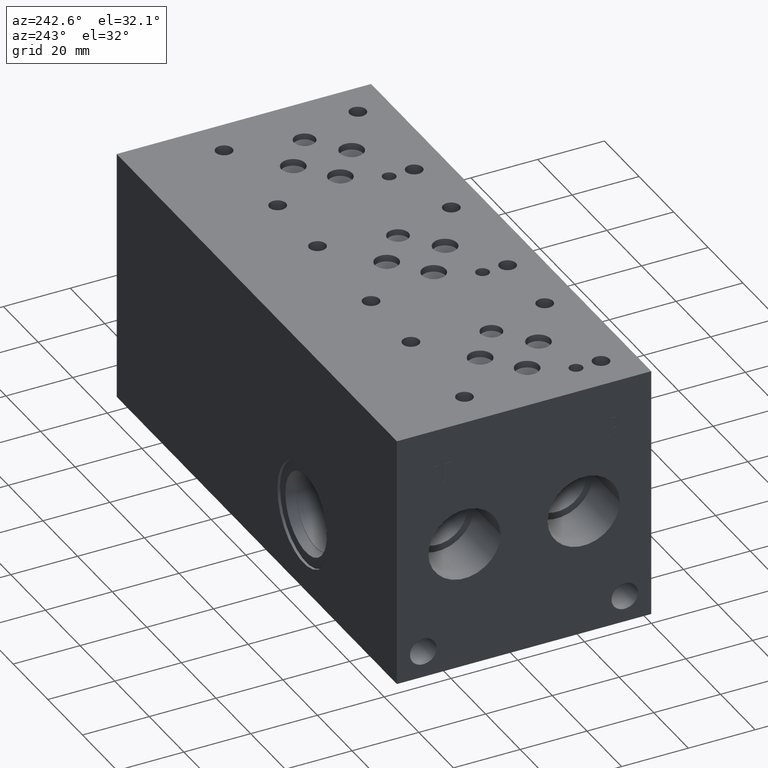
[diagram: clean part render]
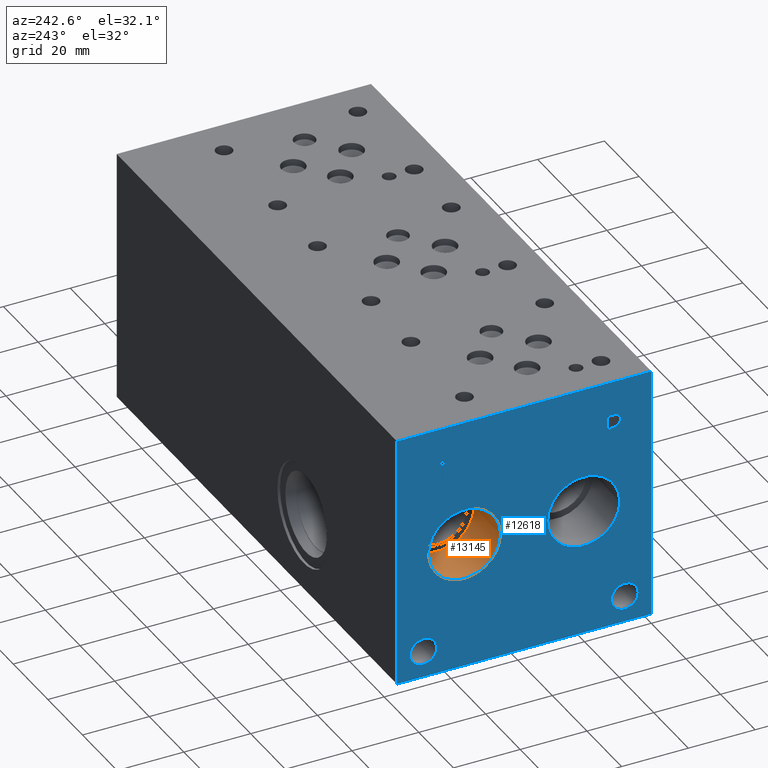
[diagram: same view with the hole feature highlighted: cylindrical wall and planar end face, labeled with their STEP entity ids]
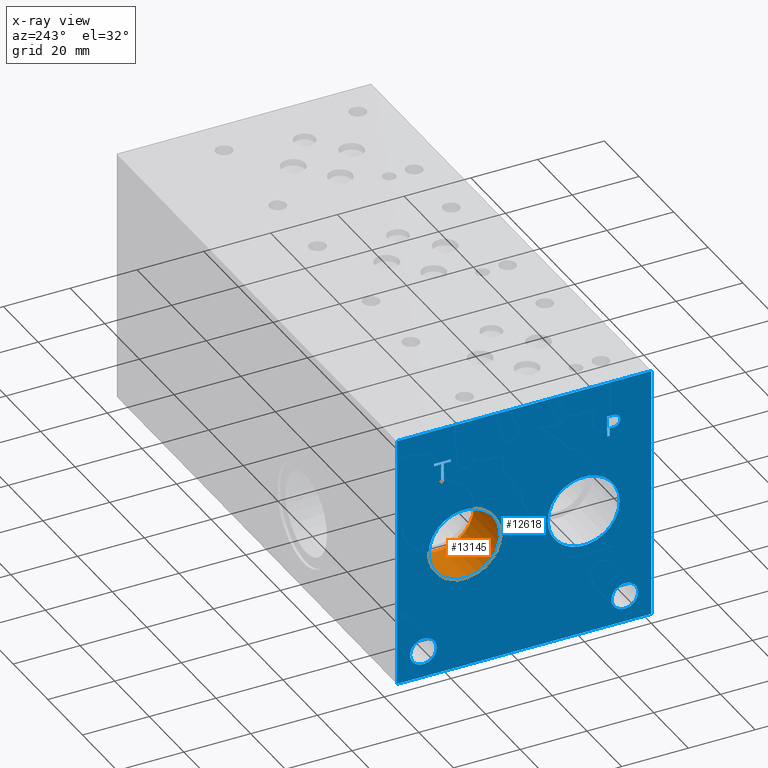
[diagram: x-ray of the same camera — body ghosted, the hole faces saturated]
A machine part, auxiliary view. The highlighted faces form one hole feature of diameter 21.59 mm: the cylindrical wall (entity #13145, orange) and its adjacent planar end face (entity #12618, blue) — they share a circular edge in the B-rep.
The next image is the same camera in x-ray (body ghosted, the hole faces saturated) — the bore reads through the body.
Wall:
#40=CYLINDRICAL_SURFACE('',#13774,10.795);
#152=CIRCLE('',#13306,10.795);
#153=CIRCLE('',#13307,10.795);
#254=CIRCLE('',#13771,10.795);
#255=CIRCLE('',#13772,10.795);
#1495=FACE_OUTER_BOUND('',#2251,.T.);
#2251=EDGE_LOOP('',(#11323,#11324,#11325,#11326,#11327,#11328));
#3504=LINE('',#22356,#4689);
#4689=VECTOR('',#16169,10.795);
#5231=VERTEX_POINT('',#17309);
#5232=VERTEX_POINT('',#17310);
#6197=VERTEX_POINT('',#22349);
#6198=VERTEX_POINT('',#22350);
#6543=EDGE_CURVE('',#5231,#5232,#152,.T.);
#6544=EDGE_CURVE('',#5232,#5231,#153,.T.);
#7972=EDGE_CURVE('',#6197,#6198,#254,.T.);
#7973=EDGE_CURVE('',#6198,#6197,#255,.T.);
#7975=EDGE_CURVE('',#5232,#6198,#3504,.T.);
#11323=ORIENTED_EDGE('',*,*,#6543,.F.);
#11324=ORIENTED_EDGE('',*,*,#6544,.F.);
#11325=ORIENTED_EDGE('',*,*,#7975,.T.);
#11326=ORIENTED_EDGE('',*,*,#7972,.F.);
#11327=ORIENTED_EDGE('',*,*,#7973,.F.);
#11328=ORIENTED_EDGE('',*,*,#7975,.F.);
#13145=ADVANCED_FACE('',(#1495),#40,.F.);
#13306=AXIS2_PLACEMENT_3D('',#17311,#14230,#14231);
#13307=AXIS2_PLACEMENT_3D('',#17312,#14232,#14233);
#13771=AXIS2_PLACEMENT_3D('',#22351,#16161,#16162);
#13772=AXIS2_PLACEMENT_3D('',#22352,#16163,#16164);
#13774=AXIS2_PLACEMENT_3D('',#22355,#16167,#16168);
#14230=DIRECTION('center_axis',(1.,0.,0.));
#14231=DIRECTION('ref_axis',(0.,1.,0.));
#14232=DIRECTION('center_axis',(1.,0.,0.));
#14233=DIRECTION('ref_axis',(0.,1.,0.));
#16161=DIRECTION('center_axis',(-1.,0.,0.));
#16162=DIRECTION('ref_axis',(0.,1.,0.));
#16163=DIRECTION('center_axis',(-1.,0.,0.));
#16164=DIRECTION('ref_axis',(0.,1.,0.));
#16167=DIRECTION('center_axis',(-1.,0.,0.));
#16168=DIRECTION('ref_axis',(0.,1.,0.));
#16169=DIRECTION('',(1.,0.,0.));
#17309=CARTESIAN_POINT('',(0.,66.7512,38.1));
#17310=CARTESIAN_POINT('',(0.,45.1612,38.1));
#17311=CARTESIAN_POINT('Origin',(0.,55.9562,38.1));
#17312=CARTESIAN_POINT('Origin',(0.,55.9562,38.1));
#22349=CARTESIAN_POINT('',(15.367,66.7512,38.1));
#22350=CARTESIAN_POINT('',(15.367,45.1612,38.1));
#22351=CARTESIAN_POINT('Origin',(15.367,55.9562,38.1));
#22352=CARTESIAN_POINT('Origin',(15.367,55.9562,38.1));
#22355=CARTESIAN_POINT('Origin',(7.6835,55.9562,38.1));
#22356=CARTESIAN_POINT('',(7.6835,45.1612,38.1));
End face:
#152=CIRCLE('',#13306,10.795);
#153=CIRCLE('',#13307,10.795);
#154=CIRCLE('',#13308,10.795);
#155=CIRCLE('',#13309,10.795);
#156=CIRCLE('',#13310,4.0005);
#157=CIRCLE('',#13311,4.0005);
#158=CIRCLE('',#13312,4.0005);
#159=CIRCLE('',#13313,4.0005);
#439=FACE_BOUND('',#1658,.T.);
#440=FACE_BOUND('',#1659,.T.);
#441=FACE_BOUND('',#1660,.T.);
#442=FACE_BOUND('',#1661,.T.);
#443=FACE_BOUND('',#1662,.T.);
#444=FACE_BOUND('',#1663,.T.);
#580=PLANE('',#13305);
#968=FACE_OUTER_BOUND('',#1657,.T.);
#1657=EDGE_LOOP('',(#8466,#8467,#8468,#8469));
#1658=EDGE_LOOP('',(#8470,#8471));
#1659=EDGE_LOOP('',(#8472,#8473));
#1660=EDGE_LOOP('',(#8474,#8475));
#1661=EDGE_LOOP('',(#8476,#8477));
#1662=EDGE_LOOP('',(#8478,#8479,#8480,#8481,#8482,#8483,#8484,#8485));
#1663=EDGE_LOOP('',(#8486,#8487,#8488,#8489,#8490,#8491,#8492,#8493,#8494));
#2483=LINE('',#17236,#3668);
#2486=LINE('',#17242,#3671);
#2489=LINE('',#17248,#3674);
#2492=LINE('',#17254,#3677);
#2495=LINE('',#17260,#3680);
#2499=LINE('',#17303,#3684);
#2500=LINE('',#17305,#3685);
#2501=LINE('',#17307,#3686);
#2502=LINE('',#17308,#3687);
#2503=LINE('',#17327,#3688);
#2504=LINE('',#17329,#3689);
#2505=LINE('',#17331,#3690);
#2506=LINE('',#17333,#3691);
#2507=LINE('',#17335,#3692);
#2508=LINE('',#17337,#3693);
#2509=LINE('',#17339,#3694);
#2510=LINE('',#17340,#3695);
#3668=VECTOR('',#14198,10.);
#3671=VECTOR('',#14203,10.);
#3674=VECTOR('',#14208,10.);
#3677=VECTOR('',#14213,10.);
#3680=VECTOR('',#14218,10.);
#3684=VECTOR('',#14226,10.);
#3685=VECTOR('',#14227,10.);
#3686=VECTOR('',#14228,10.);
#3687=VECTOR('',#14229,10.);
#3688=VECTOR('',#14246,10.);
#3689=VECTOR('',#14247,10.);
#3690=VECTOR('',#14248,10.);
#3691=VECTOR('',#14249,10.);
#3692=VECTOR('',#14250,10.);
#3693=VECTOR('',#14251,10.);
#3694=VECTOR('',#14252,10.);
#3695=VECTOR('',#14253,10.);
#4801=B_SPLINE_CURVE_WITH_KNOTS('',2,(#17203,#17204,#17205,#17206),
 .UNSPECIFIED.,.F.,.F.,(3,1,3),(0.,1.,2.),.UNSPECIFIED.);
#4803=B_SPLINE_CURVE_WITH_KNOTS('',2,(#17224,#17225,#17226,#17227),
 .UNSPECIFIED.,.F.,.F.,(3,1,3),(0.,1.,2.),.UNSPECIFIED.);
#4805=B_SPLINE_CURVE_WITH_KNOTS('',2,(#17273,#17274,#17275,#17276),
 .UNSPECIFIED.,.F.,.F.,(3,1,3),(0.,1.,2.),.UNSPECIFIED.);
#4807=B_SPLINE_CURVE_WITH_KNOTS('',2,(#17291,#17292,#17293,#17294),
 .UNSPECIFIED.,.F.,.F.,(3,1,3),(0.,1.,2.),.UNSPECIFIED.);
#5209=VERTEX_POINT('',#17201);
#5210=VERTEX_POINT('',#17202);
#5213=VERTEX_POINT('',#17223);
#5215=VERTEX_POINT('',#17235);
#5217=VERTEX_POINT('',#17241);
#5219=VERTEX_POINT('',#17247);
#5221=VERTEX_POINT('',#17253);
#5223=VERTEX_POINT('',#17259);
#5225=VERTEX_POINT('',#17272);
#5227=VERTEX_POINT('',#17301);
#5228=VERTEX_POINT('',#17302);
#5229=VERTEX_POINT('',#17304);
#5230=VERTEX_POINT('',#17306);
#5231=VERTEX_POINT('',#17309);
#5232=VERTEX_POINT('',#17310);
#5233=VERTEX_POINT('',#17313);
#5234=VERTEX_POINT('',#17314);
#5235=VERTEX_POINT('',#17317);
#5236=VERTEX_POINT('',#17318);
#5237=VERTEX_POINT('',#17321);
#5238=VERTEX_POINT('',#17322);
#5239=VERTEX_POINT('',#17325);
#5240=VERTEX_POINT('',#17326);
#5241=VERTEX_POINT('',#17328);
#5242=VERTEX_POINT('',#17330);
#5243=VERTEX_POINT('',#17332);
#5244=VERTEX_POINT('',#17334);
#5245=VERTEX_POINT('',#17336);
#5246=VERTEX_POINT('',#17338);
#6512=EDGE_CURVE('',#5209,#5210,#4801,.T.);
#6516=EDGE_CURVE('',#5213,#5209,#4803,.T.);
#6519=EDGE_CURVE('',#5215,#5213,#2483,.T.);
#6522=EDGE_CURVE('',#5217,#5215,#2486,.T.);
#6525=EDGE_CURVE('',#5219,#5217,#2489,.T.);
#6528=EDGE_CURVE('',#5221,#5219,#2492,.T.);
#6531=EDGE_CURVE('',#5223,#5221,#2495,.T.);
#6534=EDGE_CURVE('',#5225,#5223,#4805,.T.);
#6537=EDGE_CURVE('',#5210,#5225,#4807,.T.);
#6539=EDGE_CURVE('',#5227,#5228,#2499,.T.);
#6540=EDGE_CURVE('',#5228,#5229,#2500,.T.);
#6541=EDGE_CURVE('',#5230,#5229,#2501,.T.);
#6542=EDGE_CURVE('',#5227,#5230,#2502,.T.);
#6543=EDGE_CURVE('',#5231,#5232,#152,.T.);
#6544=EDGE_CURVE('',#5232,#5231,#153,.T.);
#6545=EDGE_CURVE('',#5233,#5234,#154,.T.);
#6546=EDGE_CURVE('',#5234,#5233,#155,.T.);
#6547=EDGE_CURVE('',#5235,#5236,#156,.T.);
#6548=EDGE_CURVE('',#5236,#5235,#157,.T.);
#6549=EDGE_CURVE('',#5237,#5238,#158,.T.);
#6550=EDGE_CURVE('',#5238,#5237,#159,.T.);
#6551=EDGE_CURVE('',#5239,#5240,#2503,.T.);
#6552=EDGE_CURVE('',#5240,#5241,#2504,.T.);
#6553=EDGE_CURVE('',#5241,#5242,#2505,.T.);
#6554=EDGE_CURVE('',#5242,#5243,#2506,.T.);
#6555=EDGE_CURVE('',#5243,#5244,#2507,.T.);
#6556=EDGE_CURVE('',#5244,#5245,#2508,.T.);
#6557=EDGE_CURVE('',#5245,#5246,#2509,.T.);
#6558=EDGE_CURVE('',#5246,#5239,#2510,.T.);
#8466=ORIENTED_EDGE('',*,*,#6539,.T.);
#8467=ORIENTED_EDGE('',*,*,#6540,.T.);
#8468=ORIENTED_EDGE('',*,*,#6541,.F.);
#8469=ORIENTED_EDGE('',*,*,#6542,.F.);
#8470=ORIENTED_EDGE('',*,*,#6543,.T.);
#8471=ORIENTED_EDGE('',*,*,#6544,.T.);
#8472=ORIENTED_EDGE('',*,*,#6545,.T.);
#8473=ORIENTED_EDGE('',*,*,#6546,.T.);
#8474=ORIENTED_EDGE('',*,*,#6547,.T.);
#8475=ORIENTED_EDGE('',*,*,#6548,.T.);
#8476=ORIENTED_EDGE('',*,*,#6549,.T.);
#8477=ORIENTED_EDGE('',*,*,#6550,.T.);
#8478=ORIENTED_EDGE('',*,*,#6551,.T.);
#8479=ORIENTED_EDGE('',*,*,#6552,.T.);
#8480=ORIENTED_EDGE('',*,*,#6553,.T.);
#8481=ORIENTED_EDGE('',*,*,#6554,.T.);
#8482=ORIENTED_EDGE('',*,*,#6555,.T.);
#8483=ORIENTED_EDGE('',*,*,#6556,.T.);
#8484=ORIENTED_EDGE('',*,*,#6557,.T.);
#8485=ORIENTED_EDGE('',*,*,#6558,.T.);
#8486=ORIENTED_EDGE('',*,*,#6512,.T.);
#8487=ORIENTED_EDGE('',*,*,#6537,.T.);
#8488=ORIENTED_EDGE('',*,*,#6534,.T.);
#8489=ORIENTED_EDGE('',*,*,#6531,.T.);
#8490=ORIENTED_EDGE('',*,*,#6528,.T.);
#8491=ORIENTED_EDGE('',*,*,#6525,.T.);
#8492=ORIENTED_EDGE('',*,*,#6522,.T.);
#8493=ORIENTED_EDGE('',*,*,#6519,.T.);
#8494=ORIENTED_EDGE('',*,*,#6516,.T.);
#12618=ADVANCED_FACE('',(#968,#439,#440,#441,#442,#443,#444),#580,.T.);
#13305=AXIS2_PLACEMENT_3D('',#17300,#14224,#14225);
#13306=AXIS2_PLACEMENT_3D('',#17311,#14230,#14231);
#13307=AXIS2_PLACEMENT_3D('',#17312,#14232,#14233);
#13308=AXIS2_PLACEMENT_3D('',#17315,#14234,#14235);
#13309=AXIS2_PLACEMENT_3D('',#17316,#14236,#14237);
#13310=AXIS2_PLACEMENT_3D('',#17319,#14238,#14239);
#13311=AXIS2_PLACEMENT_3D('',#17320,#14240,#14241);
#13312=AXIS2_PLACEMENT_3D('',#17323,#14242,#14243);
#13313=AXIS2_PLACEMENT_3D('',#17324,#14244,#14245);
#14198=DIRECTION('',(0.,-1.,-5.56775304226775E-15));
#14203=DIRECTION('',(0.,-3.49676548440641E-15,1.));
#14208=DIRECTION('',(0.,1.,0.));
#14213=DIRECTION('',(0.,3.75218139805001E-15,-1.));
#14218=DIRECTION('',(0.,1.,0.));
#14224=DIRECTION('center_axis',(-1.,0.,0.));
#14225=DIRECTION('ref_axis',(0.,-1.,0.));
#14226=DIRECTION('',(0.,-1.,0.));
#14227=DIRECTION('',(0.,0.,1.));
#14228=DIRECTION('',(0.,-1.,0.));
#14229=DIRECTION('',(0.,0.,1.));
#14230=DIRECTION('center_axis',(1.,0.,0.));
#14231=DIRECTION('ref_axis',(0.,1.,0.));
#14232=DIRECTION('center_axis',(1.,0.,0.));
#14233=DIRECTION('ref_axis',(0.,1.,0.));
#14234=DIRECTION('center_axis',(1.,0.,0.));
#14235=DIRECTION('ref_axis',(0.,1.,0.));
#14236=DIRECTION('center_axis',(1.,0.,0.));
#14237=DIRECTION('ref_axis',(0.,1.,0.));
#14238=DIRECTION('center_axis',(1.,0.,0.));
#14239=DIRECTION('ref_axis',(0.,1.,0.));
#14240=DIRECTION('center_axis',(1.,0.,0.));
#14241=DIRECTION('ref_axis',(0.,1.,0.));
#14242=DIRECTION('center_axis',(1.,0.,0.));
#14243=DIRECTION('ref_axis',(0.,1.,0.));
#14244=DIRECTION('center_axis',(1.,0.,0.));
#14245=DIRECTION('ref_axis',(0.,1.,0.));
#14246=DIRECTION('',(0.,1.,1.05244112384329E-14));
#14247=DIRECTION('',(0.,-3.17280044688052E-15,1.));
#14248=DIRECTION('',(0.,1.,0.));
#14249=DIRECTION('',(0.,0.,1.));
#14250=DIRECTION('',(0.,-1.,-3.47984565141734E-15));
#14251=DIRECTION('',(0.,0.,-1.));
#14252=DIRECTION('',(0.,1.,4.16909044227778E-15));
#14253=DIRECTION('',(0.,3.17280044688052E-15,-1.));
#17201=CARTESIAN_POINT('',(0.,9.99323279764059,65.3897681439707));
#17202=CARTESIAN_POINT('',(0.,9.23679034546799,63.871737372604));
#17203=CARTESIAN_POINT('Ctrl Pts',(0.,9.99323279764059,65.3897681439707));
#17204=CARTESIAN_POINT('Ctrl Pts',(0.,9.63816797315141,65.1479123939564));
#17205=CARTESIAN_POINT('Ctrl Pts',(0.,9.23679034546799,64.4017616758269));
#17206=CARTESIAN_POINT('Ctrl Pts',(0.,9.23679034546799,63.871737372604));
#17223=CARTESIAN_POINT('',(0.,11.6553478456117,65.7859999046326));
#17224=CARTESIAN_POINT('Ctrl Pts',(0.,11.6553478456117,65.7859999046326));
#17225=CARTESIAN_POINT('Ctrl Pts',(0.,11.0893024732376,65.7859999046326));
#17226=CARTESIAN_POINT('Ctrl Pts',(0.,10.2968389519139,65.6007486918556));
#17227=CARTESIAN_POINT('Ctrl Pts',(0.,9.99323279764059,65.3897681439707));
#17235=CARTESIAN_POINT('',(0.,13.2505666223022,65.7859999046326));
#17236=CARTESIAN_POINT('',(0.,44.7252833111509,65.7859999046328));
#17241=CARTESIAN_POINT('',(0.,13.2505666223022,59.436));
#17242=CARTESIAN_POINT('',(0.,13.2505666223023,29.7179999999999));
#17247=CARTESIAN_POINT('',(0.,12.4066444307627,59.436));
#17248=CARTESIAN_POINT('',(0.,44.3033222153814,59.436));
#17253=CARTESIAN_POINT('',(0.,12.4066444307627,61.8030988299279));
#17254=CARTESIAN_POINT('',(0.,12.4066444307628,30.9015494149638));
#17259=CARTESIAN_POINT('',(0.,11.6913689147628,61.8030988299279));
#17260=CARTESIAN_POINT('',(0.,43.9456844573814,61.8030988299279));
#17272=CARTESIAN_POINT('',(0.,9.79254398379889,62.4617698086904));
#17273=CARTESIAN_POINT('Ctrl Pts',(0.,9.79254398379889,62.4617698086904));
#17274=CARTESIAN_POINT('Ctrl Pts',(0.,10.1218794731802,62.1375801863307));
#17275=CARTESIAN_POINT('Ctrl Pts',(0.,11.0121144679139,61.8030988299279));
#17276=CARTESIAN_POINT('Ctrl Pts',(0.,11.6913689147628,61.8030988299279));
#17291=CARTESIAN_POINT('Ctrl Pts',(0.,9.23679034546799,63.871737372604));
#17292=CARTESIAN_POINT('Ctrl Pts',(0.,9.236790345468,63.4600680108774));
#17293=CARTESIAN_POINT('Ctrl Pts',(0.,9.53010476569819,62.7190631597695));
#17294=CARTESIAN_POINT('Ctrl Pts',(0.,9.79254398379889,62.4617698086904));
#17300=CARTESIAN_POINT('Origin',(0.,76.2,0.));
#17301=CARTESIAN_POINT('',(0.,76.2,0.));
#17302=CARTESIAN_POINT('',(0.,0.,0.));
#17303=CARTESIAN_POINT('',(0.,76.2,0.));
#17304=CARTESIAN_POINT('',(0.,0.,76.2));
#17305=CARTESIAN_POINT('',(0.,0.,0.));
#17306=CARTESIAN_POINT('',(0.,76.2,76.2));
#17307=CARTESIAN_POINT('',(0.,76.2,76.2));
#17308=CARTESIAN_POINT('',(0.,76.2,0.));
#17309=CARTESIAN_POINT('',(0.,66.7512,38.1));
#17310=CARTESIAN_POINT('',(0.,45.1612,38.1));
#17311=CARTESIAN_POINT('Origin',(0.,55.9562,38.1));
#17312=CARTESIAN_POINT('Origin',(0.,55.9562,38.1));
#17313=CARTESIAN_POINT('',(0.,31.0388,38.1));
#17314=CARTESIAN_POINT('',(0.,9.4488,38.1));
#17315=CARTESIAN_POINT('Origin',(0.,20.2438,38.1));
#17316=CARTESIAN_POINT('Origin',(0.,20.2438,38.1));
#17317=CARTESIAN_POINT('',(0.,72.2757,7.92480000000001));
#17318=CARTESIAN_POINT('',(0.,64.2747,7.92480000000001));
#17319=CARTESIAN_POINT('Origin',(0.,68.2752,7.92480000000001));
#17320=CARTESIAN_POINT('Origin',(0.,68.2752,7.92480000000001));
#17321=CARTESIAN_POINT('',(0.,11.9253,7.92480000000001));
#17322=CARTESIAN_POINT('',(0.,3.9243,7.92480000000001));
#17323=CARTESIAN_POINT('Origin',(0.,7.9248,7.92480000000001));
#17324=CARTESIAN_POINT('Origin',(0.,7.9248,7.92480000000001));
#17325=CARTESIAN_POINT('',(0.,62.118334728547,59.53125));
#17326=CARTESIAN_POINT('',(0.,62.9622569200865,59.53125));
#17327=CARTESIAN_POINT('',(0.,69.1591673642732,59.5312500000001));
#17328=CARTESIAN_POINT('',(0.,62.9622569200865,65.1299533194816));
#17329=CARTESIAN_POINT('',(0.,62.9622569200866,29.765625));
#17330=CARTESIAN_POINT('',(0.,65.0926458670216,65.1299533194816));
#17331=CARTESIAN_POINT('',(0.,69.5811284600433,65.1299533194816));
#17332=CARTESIAN_POINT('',(0.,65.0926458670216,65.8812499046326));
#17333=CARTESIAN_POINT('',(0.,65.0926458670216,32.5649766597408));
#17334=CARTESIAN_POINT('',(0.,59.9879457816119,65.8812499046326));
#17335=CARTESIAN_POINT('',(0.,70.6463229335107,65.8812499046326));
#17336=CARTESIAN_POINT('',(0.,59.9879457816119,65.1299533194815));
#17337=CARTESIAN_POINT('',(0.,59.9879457816119,32.9406249523163));
#17338=CARTESIAN_POINT('',(0.,62.118334728547,65.1299533194816));
#17339=CARTESIAN_POINT('',(0.,68.0939728908058,65.1299533194816));
#17340=CARTESIAN_POINT('',(0.,62.1183347285471,32.5649766597408));